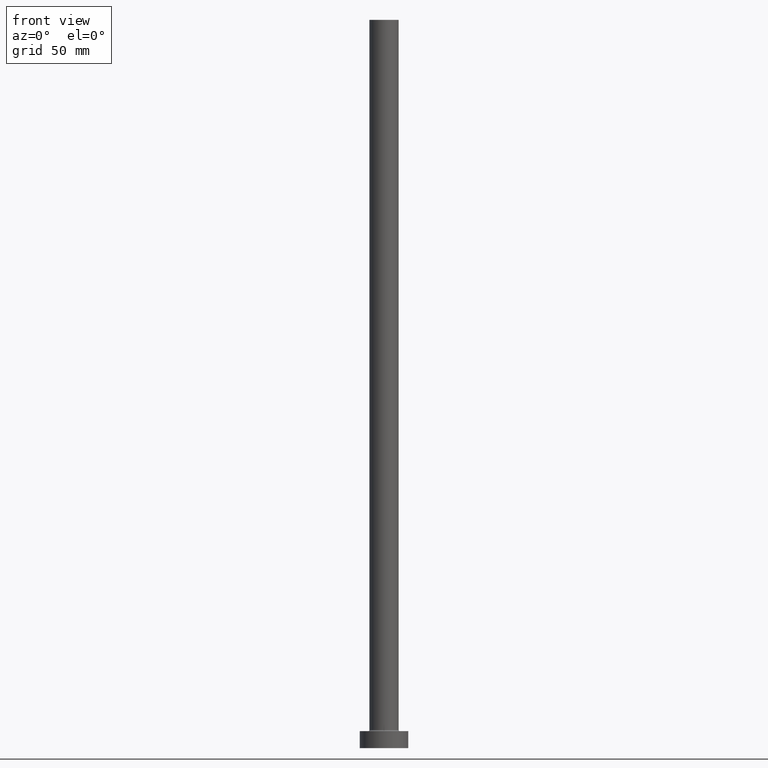
[diagram: clean part render]
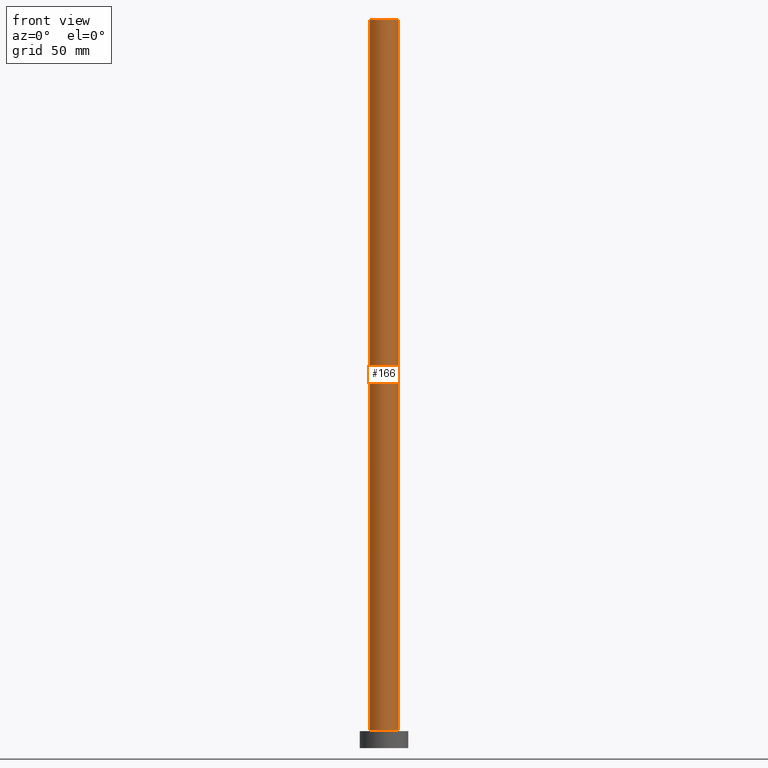
[diagram: same view with one face highlighted and labeled with its STEP entity id]
A machine part, front view. The second image highlights one B-rep face of the part: STEP entity #166.
In plain terms, the highlighted cylindrical surface (edge-blend (fillet) strip) has radius 6 mm, axis along (-0, -0, -1).
Its self-contained STEP definition (entity closure, byte-faithful):
#2 = DIRECTION ( 'NONE',  ( 0.000000000000000000, 0.000000000000000000, 1.000000000000000000 ) ) ;
#10 = DIRECTION ( 'NONE',  ( -0.000000000000000000, -0.000000000000000000, -1.000000000000000000 ) ) ;
#20 = ORIENTED_EDGE ( 'NONE', *, *, #401, .T. ) ;
#36 = DIRECTION ( 'NONE',  ( 1.000000000000000000, 0.000000000000000000, 0.000000000000000000 ) ) ;
#47 = LINE ( 'NONE', #275, #180 ) ;
#48 = DIRECTION ( 'NONE',  ( 1.000000000000000000, 0.000000000000000000, 0.000000000000000000 ) ) ;
#67 = FACE_OUTER_BOUND ( 'NONE', #224, .T. ) ;
#75 = CARTESIAN_POINT ( 'NONE',  ( 0.000000000000000000, 0.000000000000000000, 300.0000000000000000 ) ) ;
#90 = ORIENTED_EDGE ( 'NONE', *, *, #334, .T. ) ;
#98 = AXIS2_PLACEMENT_3D ( 'NONE', #172, #208, #350 ) ;
#114 = CIRCLE ( 'NONE', #130, 6.000000000000000888 ) ;
#130 = AXIS2_PLACEMENT_3D ( 'NONE', #75, #215, #36 ) ;
#141 = CARTESIAN_POINT ( 'NONE',  ( -6.000000000000000888, 0.000000000000000000, 7.500000000000007105 ) ) ;
#149 = VERTEX_POINT ( 'NONE', #141 ) ;
#166 = ADVANCED_FACE ( 'NONE', ( #67 ), #347, .T. ) ;
#168 = ORIENTED_EDGE ( 'NONE', *, *, #411, .F. ) ;
#172 = CARTESIAN_POINT ( 'NONE',  ( 0.000000000000000000, 0.000000000000000000, 300.0000000000000000 ) ) ;
#174 = DIRECTION ( 'NONE',  ( -0.000000000000000000, -0.000000000000000000, -1.000000000000000000 ) ) ;
#180 = VECTOR ( 'NONE', #10, 1000.000000000000000 ) ;
#185 = ORIENTED_EDGE ( 'NONE', *, *, #283, .F. ) ;
#203 = CARTESIAN_POINT ( 'NONE',  ( -6.000000000000000888, 0.000000000000000000, 300.0000000000000000 ) ) ;
#208 = DIRECTION ( 'NONE',  ( -0.000000000000000000, -0.000000000000000000, -1.000000000000000000 ) ) ;
#215 = DIRECTION ( 'NONE',  ( 0.000000000000000000, 0.000000000000000000, 1.000000000000000000 ) ) ;
#224 = EDGE_LOOP ( 'NONE', ( #168, #185, #20, #90 ) ) ;
#261 = VERTEX_POINT ( 'NONE', #312 ) ;
#262 = VERTEX_POINT ( 'NONE', #386 ) ;
#275 = CARTESIAN_POINT ( 'NONE',  ( 6.000000000000000888, 7.347880794884120722E-16, 300.0000000000000000 ) ) ;
#283 = EDGE_CURVE ( 'NONE', #261, #304, #114, .T. ) ;
#304 = VERTEX_POINT ( 'NONE', #360 ) ;
#312 = CARTESIAN_POINT ( 'NONE',  ( -6.000000000000000888, 0.000000000000000000, 300.0000000000000000 ) ) ;
#313 = LINE ( 'NONE', #203, #376 ) ;
#319 = CARTESIAN_POINT ( 'NONE',  ( 0.000000000000000000, 0.000000000000000000, 7.500000000000007105 ) ) ;
#334 = EDGE_CURVE ( 'NONE', #149, #262, #389, .T. ) ;
#347 = CYLINDRICAL_SURFACE ( 'NONE', #98, 6.000000000000000888 ) ;
#350 = DIRECTION ( 'NONE',  ( -1.000000000000000000, 0.000000000000000000, 0.000000000000000000 ) ) ;
#360 = CARTESIAN_POINT ( 'NONE',  ( 6.000000000000000888, 7.347880794884120722E-16, 300.0000000000000000 ) ) ;
#376 = VECTOR ( 'NONE', #174, 1000.000000000000000 ) ;
#386 = CARTESIAN_POINT ( 'NONE',  ( 6.000000000000000888, 7.347880794884120722E-16, 7.500000000000007105 ) ) ;
#389 = CIRCLE ( 'NONE', #396, 6.000000000000000888 ) ;
#396 = AXIS2_PLACEMENT_3D ( 'NONE', #319, #2, #48 ) ;
#401 = EDGE_CURVE ( 'NONE', #261, #149, #313, .T. ) ;
#411 = EDGE_CURVE ( 'NONE', #304, #262, #47, .T. ) ;